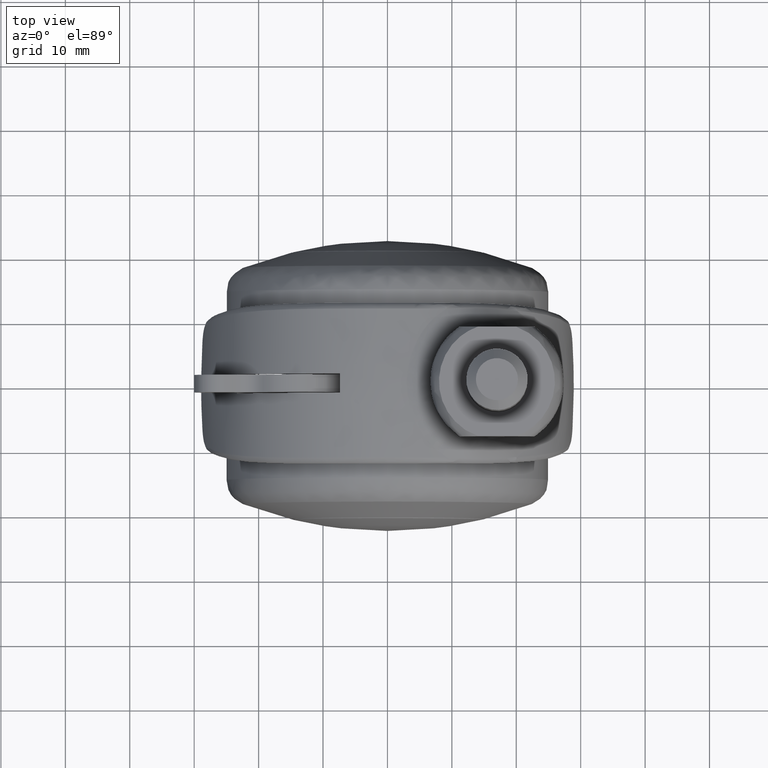
[diagram: clean part render]
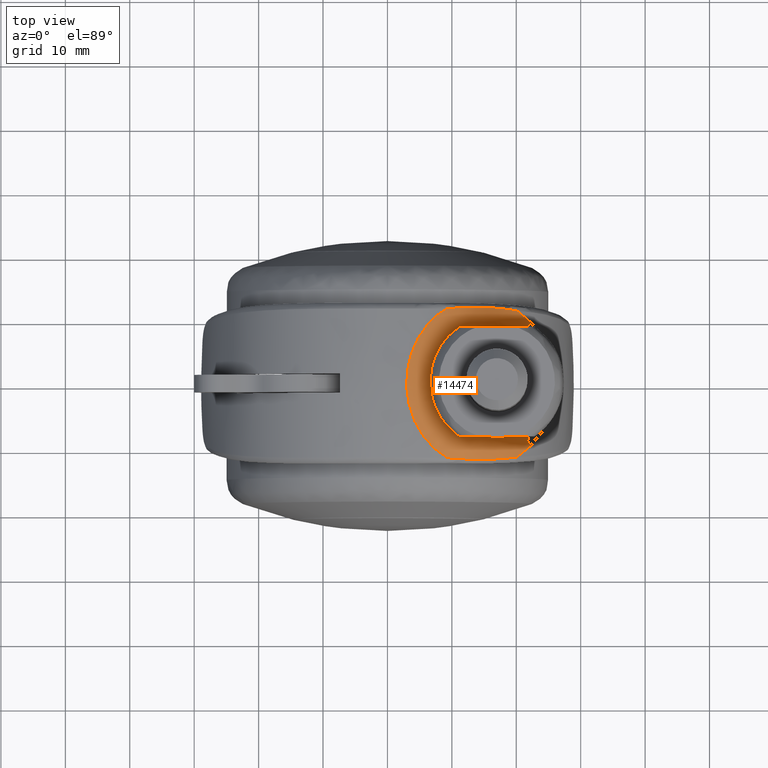
[diagram: same view with one face highlighted and labeled with its STEP entity id]
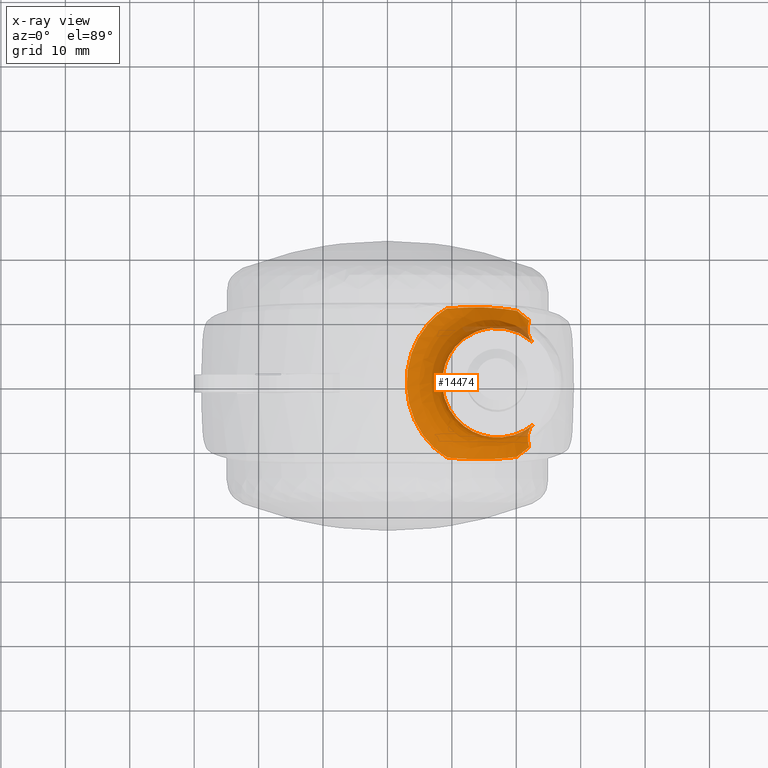
[diagram: x-ray of the same camera — body ghosted, the highlighted face saturated]
A machine part, top view. The second image highlights one B-rep face of the part: STEP entity #14474.
The next image is the same camera in x-ray: the body ghosted, the highlighted face saturated — about 4% of this face is hidden behind the body in this view.
In plain terms, the highlighted face is a freeform B-spline surface patch.
Its self-contained STEP definition (entity closure, byte-faithful):
#6626=CARTESIAN_POINT('',(13.600820461277509,7.790736805630536,31.354290304166959));
#6627=VERTEX_POINT('',#6626);
#6633=CARTESIAN_POINT('',(8.989002740489665,2.841469240806965,33.653904799584353));
#6634=VERTEX_POINT('',#6633);
#6635=CARTESIAN_POINT('',(13.600820461277509,7.790736805630536,31.354290304166959));
#6636=CARTESIAN_POINT('',(13.565729914200160,7.775426381080232,31.377298043124259));
#6637=CARTESIAN_POINT('',(13.530628359254029,7.759828884174974,31.400176220354560));
#6638=CARTESIAN_POINT('',(13.396243224167790,7.699013545796422,31.487243691684601));
#6639=CARTESIAN_POINT('',(13.296838438648569,7.651714902862318,31.550553284718038));
#6640=CARTESIAN_POINT('',(13.001106572989871,7.503828406382385,31.735749136437661));
#6641=CARTESIAN_POINT('',(12.806401450721170,7.396885921984854,31.853467234776570));
#6642=CARTESIAN_POINT('',(12.230665830781721,7.050121551108235,32.190150832822702));
#6643=CARTESIAN_POINT('',(11.857925928654760,6.784512908495725,32.392668728303427));
#6644=CARTESIAN_POINT('',(11.410362248230930,6.404664766868617,32.620605398371197));
#6645=CARTESIAN_POINT('',(11.321774566119750,6.326291461823119,32.664930350296324));
#6646=CARTESIAN_POINT('',(11.146594117490221,6.164563779405603,32.751102876356661));
#6647=CARTESIAN_POINT('',(11.060181937359159,6.081355851610582,32.792857851909723));
#6648=CARTESIAN_POINT('',(10.806812602274761,5.826813210939921,32.913262072709550));
#6649=CARTESIAN_POINT('',(10.644854185199760,5.649783313293100,32.987483807570896));
#6650=CARTESIAN_POINT('',(10.180549544677669,5.096747138627567,33.193804868195173));
#6651=CARTESIAN_POINT('',(9.899623006714329,4.698943592853090,33.309661365720650));
#6652=CARTESIAN_POINT('',(9.588487835301905,4.163509506254202,33.431787150705333));
#6653=CARTESIAN_POINT('',(9.528144437698854,4.054251405002075,33.455118677172237));
#6654=CARTESIAN_POINT('',(9.412261383597123,3.832988550005596,33.499338269939400));
#6655=CARTESIAN_POINT('',(9.356889691308643,3.721334249022219,33.520164350712903));
#6656=CARTESIAN_POINT('',(9.198411029393519,3.383359077004461,33.579054080689687));
#6657=CARTESIAN_POINT('',(9.102927392000984,3.154031835741919,33.613541489053283));
#6658=CARTESIAN_POINT('',(9.007923474470237,2.894387315039669,33.647220431935189));
#6659=CARTESIAN_POINT('',(8.998398451854719,2.867953324330772,33.650589201872890));
#6660=CARTESIAN_POINT('',(8.989002740489665,2.841469240806965,33.653904799584353));
#6661=B_SPLINE_CURVE_WITH_KNOTS('',3,(#6635,#6636,#6637,#6638,#6639,#6640,#6641,#6642,#6643,#6644,#6645,#6646,#6647,#6648,#6649,#6650,#6651,#6652,#6653,#6654,#6655,#6656,#6657,#6658,#6659,#6660),.UNSPECIFIED.,.F.,.U.,(4,2,2,2,2,2,2,2,2,2,2,2,4),(0.286299367508931,0.289062499999999,0.296874999999999,0.312499999999999,0.343749999999999,0.351562500000000,0.359375000000000,0.375000000000000,0.406250000000000,0.414062500000000,0.421875000000000,0.437500000000000,0.439267337095085),.UNSPECIFIED.);
#6662=EDGE_CURVE('',#6627,#6634,#6661,.T.);
#6714=CARTESIAN_POINT('',(22.568417742021449,-6.422049816868380,21.494184999999899));
#6715=VERTEX_POINT('',#6714);
#6716=CARTESIAN_POINT('',(8.989002740489665,2.841469240806965,33.653904799584353));
#6717=CARTESIAN_POINT('',(8.832263581365002,2.399662554207517,33.709215300537593));
#6718=CARTESIAN_POINT('',(8.711510209278796,1.943915635522798,33.749728612481647));
#6719=CARTESIAN_POINT('',(8.606806491534297,1.349178001491099,33.784444927809687));
#6720=CARTESIAN_POINT('',(8.587592946124408,1.223649841172027,33.790773713959133));
#6721=CARTESIAN_POINT('',(8.554965940671574,0.973299214296194,33.801482012839109));
#6722=CARTESIAN_POINT('',(8.541488340737612,0.848135817591433,33.805882798527172));
#6723=CARTESIAN_POINT('',(8.509437095726142,0.472680773971368,33.816326310565962));
#6724=CARTESIAN_POINT('',(8.489020485552860,-0.027832382726167,33.822920631034371));
#6725=CARTESIAN_POINT('',(8.512708774295810,-0.528160929720569,33.815266146705163));
#6726=CARTESIAN_POINT('',(8.547205600986876,-0.903337180250094,33.804015885876602));
#6727=CARTESIAN_POINT('',(8.561497024000904,-1.028384217688447,33.799344246106507));
#6728=CARTESIAN_POINT('',(8.595747432896971,-1.278454467870869,33.788088425314783));
#6729=CARTESIAN_POINT('',(8.615770767065211,-1.403810722005213,33.781482871433127));
#6730=CARTESIAN_POINT('',(8.729497740880367,-2.026040533671226,33.743709569604377));
#6731=CARTESIAN_POINT('',(8.863039508168424,-2.507294609749202,33.698768277107654));
#6732=CARTESIAN_POINT('',(9.123574162634139,-3.205240662314620,33.606112687702741));
#6733=CARTESIAN_POINT('',(9.220515685262370,-3.433873954153890,33.570974904385011));
#6734=CARTESIAN_POINT('',(9.381115982977482,-3.770684615597874,33.511070384299828));
#6735=CARTESIAN_POINT('',(9.437183993298207,-3.881930125782598,33.489899521471123));
#6736=CARTESIAN_POINT('',(9.554435868276093,-4.102333825797065,33.444976502749803));
#6737=CARTESIAN_POINT('',(9.615444449937382,-4.211132996882343,33.421289333300983));
#6738=CARTESIAN_POINT('',(9.929758168969290,-4.744123405768174,33.297389164566930));
#6739=CARTESIAN_POINT('',(10.212800938094819,-5.139517608404394,33.180100930206372));
#6740=CARTESIAN_POINT('',(10.679474087164561,-5.688464138380205,32.971734986762193));
#6741=CARTESIAN_POINT('',(10.842087476641010,-5.864051059453741,32.896849623602428));
#6742=CARTESIAN_POINT('',(11.096213026048661,-6.116333833050534,32.775502013350803));
#6743=CARTESIAN_POINT('',(11.182624127177400,-6.198576620991978,32.733547928824358));
#6744=CARTESIAN_POINT('',(11.358807439343220,-6.359336539267152,32.646463648714757));
#6745=CARTESIAN_POINT('',(11.447875925375749,-6.437209828369117,32.601680133501922));
#6746=CARTESIAN_POINT('',(11.897226432831010,-6.814090422257684,32.371712789393150));
#6747=CARTESIAN_POINT('',(12.269946974657170,-7.076334922237363,32.168141558100899));
#6748=CARTESIAN_POINT('',(13.034507403696660,-7.531453231626383,31.719020207383799));
#6749=CARTESIAN_POINT('',(13.426388101518970,-7.724261352385262,31.473469378402282));
#6750=CARTESIAN_POINT('',(14.224187541296400,-8.045482086840806,30.937020330057649));
#6751=CARTESIAN_POINT('',(14.619263809516900,-8.169638149919519,30.653406560729149));
#6752=CARTESIAN_POINT('',(15.399176727764671,-8.357527032895343,30.056682838524988));
#6753=CARTESIAN_POINT('',(15.784119680065309,-8.421217189391333,29.743510976345849));
#6754=CARTESIAN_POINT('',(16.258221953667281,-8.468107615326497,29.333918600888250));
#6755=CARTESIAN_POINT('',(16.352689847187168,-8.475841309494983,29.251093052402329));
#6756=CARTESIAN_POINT('',(16.540904739795849,-8.488116870172883,29.083634662661460));
#6757=CARTESIAN_POINT('',(16.634765244992611,-8.492659441472046,28.998895530096458));
#6758=CARTESIAN_POINT('',(16.913770119469529,-8.501599845004414,28.743339614232902));
#6759=CARTESIAN_POINT('',(17.096702512640359,-8.501358202286493,28.570874194784139));
#6760=CARTESIAN_POINT('',(17.636747641276031,-8.483767716891583,28.047403983935119));
#6761=CARTESIAN_POINT('',(17.985125721298608,-8.449639128129036,27.690330620908441));
#6762=CARTESIAN_POINT('',(18.660523144064719,-8.343233003492486,26.960975636176169));
#6763=CARTESIAN_POINT('',(18.987536772059251,-8.270924910105038,26.588692549633830));
#6764=CARTESIAN_POINT('',(19.383852849745210,-8.159290998413912,26.114346438675600));
#6765=CARTESIAN_POINT('',(19.462492519001721,-8.135896915173422,26.019027286818179));
#6766=CARTESIAN_POINT('',(19.618543638010891,-8.087021526311920,25.827500812723610));
#6767=CARTESIAN_POINT('',(19.696003764190689,-8.061521736821103,25.731230603417121));
#6768=CARTESIAN_POINT('',(19.925805291679559,-7.982225951437351,25.442074352256849));
#6769=CARTESIAN_POINT('',(20.075790153200529,-7.925574863458488,25.248578167814351));
#6770=CARTESIAN_POINT('',(20.516638381895060,-7.744942516321844,24.666018776892990));
#6771=CARTESIAN_POINT('',(20.798416945645020,-7.610332630282786,24.274879927169358));
#6772=CARTESIAN_POINT('',(21.340004932332960,-7.315018162421025,23.487734041300062));
#6773=CARTESIAN_POINT('',(21.599808218665409,-7.154310346135242,23.091724082426580));
#6774=CARTESIAN_POINT('',(22.099079877653619,-6.807479415615021,22.295684466595009));
#6775=CARTESIAN_POINT('',(22.338545450094038,-6.621367035275044,21.895648769417360));
#6776=CARTESIAN_POINT('',(22.568417742021449,-6.422049816868380,21.494184999999899));
#6777=B_SPLINE_CURVE_WITH_KNOTS('',3,(#6716,#6717,#6718,#6719,#6720,#6721,#6722,#6723,#6724,#6725,#6726,#6727,#6728,#6729,#6730,#6731,#6732,#6733,#6734,#6735,#6736,#6737,#6738,#6739,#6740,#6741,#6742,#6743,#6744,#6745,#6746,#6747,#6748,#6749,#6750,#6751,#6752,#6753,#6754,#6755,#6756,#6757,#6758,#6759,#6760,#6761,#6762,#6763,#6764,#6765,#6766,#6767,#6768,#6769,#6770,#6771,#6772,#6773,#6774,#6775,#6776),.UNSPECIFIED.,.F.,.U.,(4,2,2,2,1,2,2,2,2,2,2,2,2,2,2,2,2,2,2,2,2,2,2,2,2,2,2,2,2,2,4),(0.439267337095085,0.468750000000000,0.476562500000000,0.484375000000000,0.500000000000000,0.515625000000000,0.523437500000000,0.531250000000000,0.562500000000000,0.578125000000000,0.585937500000000,0.593750000000000,0.625000000000000,0.640625000000000,0.648437500000000,0.656250000000000,0.687500000000001,0.718750000000001,0.750000000000001,0.781250000000001,0.789062500000001,0.796875000000001,0.812500000000001,0.843750000000001,0.875000000000001,0.882812500000001,0.890625000000001,0.906250000000001,0.937500000000000,0.968750000000000,1.0),.UNSPECIFIED.);
#6778=EDGE_CURVE('',#6634,#6715,#6777,.T.);
#6780=CARTESIAN_POINT('',(22.568417742021399,6.422049816868411,21.494184999999899));
#6781=VERTEX_POINT('',#6780);
#6797=CARTESIAN_POINT('',(22.568417742021399,6.422049816868411,21.494184999999899));
#6798=CARTESIAN_POINT('',(22.338092286259378,6.621759853532426,21.896439941882960));
#6799=CARTESIAN_POINT('',(22.097679625041689,6.808609665879277,22.298061507609049));
#6800=CARTESIAN_POINT('',(21.720862944921429,7.070136187964205,22.898639540938539));
#6801=CARTESIAN_POINT('',(21.592553597428299,7.154172246539103,23.098527054376941));
#6802=CARTESIAN_POINT('',(21.330294832161471,7.315891935200796,23.497579058935319));
#6803=CARTESIAN_POINT('',(21.196208444462950,7.393647488043520,23.696940268544530));
#6804=CARTESIAN_POINT('',(20.786233831151641,7.616508560598880,24.292135250141001));
#6805=CARTESIAN_POINT('',(20.502790089402399,7.751225953063007,24.684913257859019));
#6806=CARTESIAN_POINT('',(19.914054116290959,7.991203255311110,25.461675806644561));
#6807=CARTESIAN_POINT('',(19.608767996968790,8.096473407477797,25.845662240350290));
#6808=CARTESIAN_POINT('',(19.132835930661020,8.229710880886053,26.414508169390260));
#6809=CARTESIAN_POINT('',(18.971186438178840,8.269997976099138,26.602934608072442));
#6810=CARTESIAN_POINT('',(18.641533280561799,8.341691118456399,26.977319068455600));
#6811=CARTESIAN_POINT('',(18.473214254112548,8.373136998806189,27.163607944155601));
#6812=CARTESIAN_POINT('',(17.961502387866041,8.452495412335459,27.715044392543589));
#6813=CARTESIAN_POINT('',(17.610917187472388,8.485686275878910,28.073350683275741));
#6814=CARTESIAN_POINT('',(16.889836738543391,8.506935755428996,28.770405071996919));
#6815=CARTESIAN_POINT('',(16.519344164400039,8.495040449586709,29.109154829202829));
#6816=CARTESIAN_POINT('',(15.947681492585151,8.436782858103770,29.601741518994000));
#6817=CARTESIAN_POINT('',(15.754109114844169,8.410499318125728,29.763612052684209));
#6818=CARTESIAN_POINT('',(15.366092386121730,8.343805468241897,30.078337825164478));
#6819=CARTESIAN_POINT('',(15.171166743143930,8.303370897215896,30.231625084609028));
#6820=CARTESIAN_POINT('',(14.584034501671921,8.159382983842772,30.679231189794081));
#6821=CARTESIAN_POINT('',(14.189434188911600,8.033298750655096,30.961303405169570));
#6822=CARTESIAN_POINT('',(13.729033204904750,7.845734921540690,31.269768743891920));
#6823=CARTESIAN_POINT('',(13.664945213113400,7.818715190617047,31.312245854370179));
#6824=CARTESIAN_POINT('',(13.600820461277509,7.790736805630536,31.354290304166959));
#6825=B_SPLINE_CURVE_WITH_KNOTS('',3,(#6797,#6798,#6799,#6800,#6801,#6802,#6803,#6804,#6805,#6806,#6807,#6808,#6809,#6810,#6811,#6812,#6813,#6814,#6815,#6816,#6817,#6818,#6819,#6820,#6821,#6822,#6823,#6824),.UNSPECIFIED.,.F.,.U.,(4,2,2,2,2,2,2,2,2,2,2,2,2,4),(0.0,0.031250000000000,0.046875000000000,0.062500000000000,0.093750000000000,0.125000000000000,0.140625000000000,0.156250000000000,0.187500000000000,0.218749999999999,0.234374999999999,0.249999999999999,0.281249999999999,0.286299367508931),.UNSPECIFIED.);
#6826=EDGE_CURVE('',#6781,#6627,#6825,.T.);
#9891=CARTESIAN_POINT('',(9.187980648555419,11.545094187609340,26.963906616021148));
#9892=VERTEX_POINT('',#9891);
#9906=CARTESIAN_POINT('',(20.124422700888552,11.318372585422759,20.189590055835801));
#9907=VERTEX_POINT('',#9906);
#9908=CARTESIAN_POINT('',(20.124422700888552,11.318372585422759,20.189590055835801));
#9909=CARTESIAN_POINT('',(19.352016494529870,11.435296953342750,20.945074915839012));
#9910=CARTESIAN_POINT('',(18.566417005668910,11.534508870990869,21.684705131571221));
#9911=CARTESIAN_POINT('',(17.333168127143360,11.647792046319029,22.724876947214799));
#9912=CARTESIAN_POINT('',(16.912988765273820,11.679647264295470,23.060113511641070));
#9913=CARTESIAN_POINT('',(16.049434013201392,11.730091252941760,23.701135440974639));
#9914=CARTESIAN_POINT('',(15.606025401749060,11.748674934908051,24.006877399429509));
#9915=CARTESIAN_POINT('',(14.692230700093340,11.771117413438860,24.584046842987622));
#9916=CARTESIAN_POINT('',(14.221787549219099,11.774953672940031,24.855400989820438));
#9917=CARTESIAN_POINT('',(13.494999335476070,11.768845177329149,25.235593204035730));
#9918=CARTESIAN_POINT('',(13.248954094668870,11.764823117005919,25.357999772700271));
#9919=CARTESIAN_POINT('',(12.754022092832560,11.752937209801271,25.592537340395019));
#9920=CARTESIAN_POINT('',(12.504700452481170,11.745073957002990,25.704910679053960));
#9921=CARTESIAN_POINT('',(11.751872300271170,11.716056996303591,26.029148902362738));
#9922=CARTESIAN_POINT('',(11.243419234564749,11.689420133847291,26.227916158596670));
#9923=CARTESIAN_POINT('',(10.219146056664339,11.624688321650520,26.605511051365148));
#9924=CARTESIAN_POINT('',(9.703342255071261,11.586629155925960,26.784384203999871));
#9925=CARTESIAN_POINT('',(9.187980648555419,11.545094187609340,26.963906616021148));
#9926=B_SPLINE_CURVE_WITH_KNOTS('',3,(#9908,#9909,#9910,#9911,#9912,#9913,#9914,#9915,#9916,#9917,#9918,#9919,#9920,#9921,#9922,#9923,#9924,#9925),.UNSPECIFIED.,.F.,.U.,(4,2,2,2,2,2,2,2,4),(0.0,0.250000000000000,0.375000000000000,0.500000000000000,0.625000000000000,0.687500000000000,0.750000000000000,0.875000000000000,1.0),.UNSPECIFIED.);
#9927=EDGE_CURVE('',#9907,#9892,#9926,.T.);
#12280=CARTESIAN_POINT('',(20.055875386858499,-11.361640433534079,20.252353113923149));
#12281=VERTEX_POINT('',#12280);
#12859=CARTESIAN_POINT('',(9.278600396457280,-11.597686659519740,26.927886596854648));
#12860=VERTEX_POINT('',#12859);
#13083=CARTESIAN_POINT('',(9.278600396457280,-11.597686659519740,26.927886596854648));
#13084=CARTESIAN_POINT('',(9.783065509583327,-11.637416294707160,26.750298036410381));
#13085=CARTESIAN_POINT('',(10.287632605575720,-11.673667815737220,26.572854096909190));
#13086=CARTESIAN_POINT('',(11.287085685371199,-11.734999504227110,26.199707860306070));
#13087=CARTESIAN_POINT('',(11.781949400991120,-11.760049309430871,26.003963503995070));
#13088=CARTESIAN_POINT('',(12.755374913708360,-11.796233530875650,25.581794712772830));
#13089=CARTESIAN_POINT('',(13.233947245049210,-11.807378869122880,25.355390128832902));
#13090=CARTESIAN_POINT('',(14.171692914583240,-11.814888696381740,24.866095810034089));
#13091=CARTESIAN_POINT('',(14.630891497172231,-11.811278271608289,24.603253631866341));
#13092=CARTESIAN_POINT('',(15.529708419957730,-11.789632735132310,24.040749794376360));
#13093=CARTESIAN_POINT('',(15.969353035079241,-11.771614032700249,23.741137504376042));
#13094=CARTESIAN_POINT('',(16.615571844056380,-11.734432862430140,23.266801560672590));
#13095=CARTESIAN_POINT('',(16.828783900290048,-11.720349603802219,23.104562522005178));
#13096=CARTESIAN_POINT('',(17.251190762337551,-11.688934709855920,22.772526410697100));
#13097=CARTESIAN_POINT('',(17.460494701290170,-11.671593120839210,22.602639358435081));
#13098=CARTESIAN_POINT('',(18.496919779172881,-11.577226368014470,21.737342043670250));
#13099=CARTESIAN_POINT('',(19.284151304891701,-11.478146590605601,21.002204999003400));
#13100=CARTESIAN_POINT('',(20.055875386858499,-11.361640433534079,20.252353113923149));
#13101=B_SPLINE_CURVE_WITH_KNOTS('',3,(#13083,#13084,#13085,#13086,#13087,#13088,#13089,#13090,#13091,#13092,#13093,#13094,#13095,#13096,#13097,#13098,#13099,#13100),.UNSPECIFIED.,.F.,.U.,(4,2,2,2,2,2,2,2,4),(0.0,0.125000000000000,0.250000000000000,0.375000000000000,0.500000000000000,0.625000000000000,0.687500000000000,0.749999999999999,1.0),.UNSPECIFIED.);
#13102=EDGE_CURVE('',#12860,#12281,#13101,.T.);
#13791=CARTESIAN_POINT('',(22.010735593369049,9.821958543445859,18.306129050764600));
#13792=VERTEX_POINT('',#13791);
#13793=CARTESIAN_POINT('',(22.568417742021381,6.422049816868399,21.494184999999909));
#13794=CARTESIAN_POINT('',(21.285066533764226,7.534815342064595,19.449665845862494));
#13795=CARTESIAN_POINT('',(22.010735593369049,9.821958543445854,18.306129050764600));
#13803=(BOUNDED_CURVE()B_SPLINE_CURVE(2,(#13793,#13794,#13795),.UNSPECIFIED.,.F.,.U.)CURVE()GEOMETRIC_REPRESENTATION_ITEM()QUASI_UNIFORM_CURVE()RATIONAL_B_SPLINE_CURVE((1.0,0.882983071958700,1.0))REPRESENTATION_ITEM(''));
#13804=EDGE_CURVE('',#6781,#13792,#13803,.T.);
#13880=CARTESIAN_POINT('',(22.010735593369098,-9.821958543445799,18.306129050764550));
#13881=VERTEX_POINT('',#13880);
#13882=CARTESIAN_POINT('',(22.010735593369091,-9.821958543445801,18.306129050764550));
#13883=CARTESIAN_POINT('',(21.285066533764265,-7.534815342064546,19.449665845862480));
#13884=CARTESIAN_POINT('',(22.568417742021431,-6.422049816868363,21.494184999999909));
#13892=(BOUNDED_CURVE()B_SPLINE_CURVE(2,(#13882,#13883,#13884),.UNSPECIFIED.,.F.,.U.)CURVE()GEOMETRIC_REPRESENTATION_ITEM()QUASI_UNIFORM_CURVE()RATIONAL_B_SPLINE_CURVE((1.0,0.882983071958700,1.0))REPRESENTATION_ITEM(''));
#13893=EDGE_CURVE('',#13881,#6715,#13892,.T.);
#13988=CARTESIAN_POINT('',(22.188111475523730,-9.675203052987664,18.110127009512748));
#13989=CARTESIAN_POINT('',(22.131119973642150,-9.730852597797467,18.172097823816301));
#13990=CARTESIAN_POINT('',(22.074129882124570,-9.786500765452585,18.234067104533231));
#13991=CARTESIAN_POINT('',(21.304901643625481,-10.537616281170591,19.070502340511670));
#13992=CARTESIAN_POINT('',(20.529771727630848,-11.127138642062826,19.834407518072780));
#13993=CARTESIAN_POINT('',(19.264982225052226,-11.854373328791501,20.953995701492762));
#13994=CARTESIAN_POINT('',(18.826224214863156,-12.070187153516507,21.322945757203303));
#13995=CARTESIAN_POINT('',(18.139912787905406,-12.350437698002482,21.869456103468266));
#13996=CARTESIAN_POINT('',(17.906018346190852,-12.436665522240901,22.050765411856904));
#13997=CARTESIAN_POINT('',(17.433738561360318,-12.591985830066131,22.406994313647914));
#13998=CARTESIAN_POINT('',(17.194786595073026,-12.661342313506111,22.582382524205720));
#13999=CARTESIAN_POINT('',(15.985865721704595,-12.965519426153792,23.445749361517574));
#14000=CARTESIAN_POINT('',(14.973615068278075,-13.075438605123820,24.093213952670446));
#14001=CARTESIAN_POINT('',(12.850603150389567,-12.962412633028777,25.302150603488894));
#14002=CARTESIAN_POINT('',(11.785971246994380,-12.741645346977709,25.837221572433236));
#14003=CARTESIAN_POINT('',(10.461984386536585,-12.227611439885516,26.429879449295203));
#14004=CARTESIAN_POINT('',(10.196383280978923,-12.112112243725527,26.545066179364319));
#14005=CARTESIAN_POINT('',(9.672973835872096,-11.858572633255458,26.765200201405921));
#14006=CARTESIAN_POINT('',(9.415411136414230,-11.720795241085069,26.870086613938973));
#14007=CARTESIAN_POINT('',(8.655591528322058,-11.274411514836448,27.170342352601001));
#14008=CARTESIAN_POINT('',(8.166110471689258,-10.932907775765649,27.351355096121782));
#14009=CARTESIAN_POINT('',(7.460407880879484,-10.352027117086152,27.597819585280924));
#14010=CARTESIAN_POINT('',(7.229944557244562,-10.146926930120003,27.675787690464535));
#14011=CARTESIAN_POINT('',(6.779293361623708,-9.712798932945679,27.823842813287886));
#14012=CARTESIAN_POINT('',(6.558616584817802,-9.483050162580511,27.894061753426797));
#14013=CARTESIAN_POINT('',(5.925420339161884,-8.770332238965686,28.089926463188956));
#14014=CARTESIAN_POINT('',(5.537379543538067,-8.260352664620751,28.202302405825154));
#14015=CARTESIAN_POINT('',(5.007481610388394,-7.443630784061686,28.348741414960834));
#14016=CARTESIAN_POINT('',(4.839575116678576,-7.162729772285303,28.393844189200401));
#14017=CARTESIAN_POINT('',(4.521814287661578,-6.583248762263766,28.477243239885929));
#14018=CARTESIAN_POINT('',(4.371348091246755,-6.283276832837549,28.515690500136113));
#14019=CARTESIAN_POINT('',(3.953303207369785,-5.366813878414416,28.620304965780832));
#14020=CARTESIAN_POINT('',(3.719701651633607,-4.736955037832448,28.675707778662364));
#14021=CARTESIAN_POINT('',(3.341012284510101,-3.440681674704323,28.763357615086910));
#14022=CARTESIAN_POINT('',(3.195668251423373,-2.772585194932642,28.795643330240040));
#14023=CARTESIAN_POINT('',(2.999291329296820,-1.405190193178855,28.838853119809190));
#14024=CARTESIAN_POINT('',(2.950222549516404,-0.721278574851260,28.849365902515899));
#14025=CARTESIAN_POINT('',(2.946772150435978,0.646967616611634,28.850111647789952));
#14026=CARTESIAN_POINT('',(2.992389860306173,1.331300702919152,28.840344680265932));
#14027=CARTESIAN_POINT('',(3.181969605191005,2.700416133455362,28.798681737056551));
#14028=CARTESIAN_POINT('',(3.323867797808945,3.368939251313762,28.767219530809221));
#14029=CARTESIAN_POINT('',(3.696019003092570,4.667597380847986,28.681284488695042));
#14030=CARTESIAN_POINT('',(3.926467228462534,5.299024128185473,28.626786281504600));
#14031=CARTESIAN_POINT('',(4.340024549702799,6.218400680995483,28.523628242716001));
#14032=CARTESIAN_POINT('',(4.488998022225260,6.519355751334794,28.485692701430509));
#14033=CARTESIAN_POINT('',(4.804011494250156,7.101133173050296,28.403309600772229));
#14034=CARTESIAN_POINT('',(4.970641067510059,7.383312968399634,28.358716961747668));
#14035=CARTESIAN_POINT('',(5.497038278900239,8.204214677379953,28.213801512577096));
#14036=CARTESIAN_POINT('',(5.883182509453308,8.717438602572386,28.102434936535960));
#14037=CARTESIAN_POINT('',(6.514382283178888,9.435542194638314,27.907981863527652));
#14038=CARTESIAN_POINT('',(6.734021044602327,9.666620551009061,27.838377578687034));
#14039=CARTESIAN_POINT('',(7.182570297402914,10.103376267851614,27.691627202238639));
#14040=CARTESIAN_POINT('',(7.412352103496558,10.310131010231816,27.614222883397357));
#14041=CARTESIAN_POINT('',(8.117211135789265,10.896684250916735,27.369086884878886));
#14042=CARTESIAN_POINT('',(8.607728342747121,11.242912701612937,27.188484125285317));
#14043=CARTESIAN_POINT('',(9.371887820836756,11.696701962992728,26.887622631501024));
#14044=CARTESIAN_POINT('',(9.632396313837781,11.837450358165787,26.781880125853828));
#14045=CARTESIAN_POINT('',(10.155089342313243,12.093363159718768,26.562763425432614));
#14046=CARTESIAN_POINT('',(10.417742635267411,12.208919814809448,26.449232105014119));
#14047=CARTESIAN_POINT('',(11.208960082964799,12.520298592228286,26.096303316376741));
#14048=CARTESIAN_POINT('',(11.740738714684685,12.680963858024150,25.844596292025582));
#14049=CARTESIAN_POINT('',(12.810183829041085,12.914616022803356,25.305648848183015));
#14050=CARTESIAN_POINT('',(13.349338225014222,12.987054485749624,25.017320524311380));
#14051=CARTESIAN_POINT('',(14.403001774111527,13.046889792916637,24.418913301756415));
#14052=CARTESIAN_POINT('',(14.921162604179472,13.035334206078225,24.107113518429582));
#14053=CARTESIAN_POINT('',(15.685399417497853,12.961508633205911,23.620092687314010));
#14054=CARTESIAN_POINT('',(15.937978525372120,12.927444651722787,23.454528169528377));
#14055=CARTESIAN_POINT('',(16.438776767166583,12.840983057723797,23.116857888697467));
#14056=CARTESIAN_POINT('',(16.687300912712686,12.788456813688381,22.944507943159604));
#14057=CARTESIAN_POINT('',(17.905899202637741,12.484591281633367,22.075675688587307));
#14058=CARTESIAN_POINT('',(18.815061730661757,12.110641489202981,21.350992020272802));
#14059=CARTESIAN_POINT('',(20.092049109195248,11.379993899773345,20.222492015731238));
#14060=CARTESIAN_POINT('',(20.503249850379277,11.107279471340675,19.839133723362526));
#14061=CARTESIAN_POINT('',(21.286699351247616,10.512871740355816,19.070475052859514));
#14062=CARTESIAN_POINT('',(21.660495207379959,10.190405789281003,18.683841837604945));
#14063=CARTESIAN_POINT('',(22.074209685286416,9.786421233819686,18.233980160758996));
#14064=CARTESIAN_POINT('',(22.131279584054614,9.730693530499355,18.171923931817688));
#14065=CARTESIAN_POINT('',(22.188350897275722,9.674964445991849,18.109866164839424));
#14066=CARTESIAN_POINT('',(22.184885738705297,-9.665352531682331,18.115232933811654));
#14067=CARTESIAN_POINT('',(22.127903210857948,-9.720922028283829,18.177182388650131));
#14068=CARTESIAN_POINT('',(22.070921388489840,-9.776490836900299,18.239131076515715));
#14069=CARTESIAN_POINT('',(21.301735812758235,-10.526602438671381,19.075363319736745));
#14070=CARTESIAN_POINT('',(20.526727424306308,-11.115216652397928,19.838998649209920));
#14071=CARTESIAN_POINT('',(19.262370959916517,-11.841133206138251,20.958031184125083));
#14072=CARTESIAN_POINT('',(18.823795313587329,-12.056525331075081,21.326774797697038));
#14073=CARTESIAN_POINT('',(18.137838344930682,-12.336164297152958,21.872938876746364));
#14074=CARTESIAN_POINT('',(17.904074584404299,-12.422193841225692,22.054127451717321));
#14075=CARTESIAN_POINT('',(17.432082108808174,-12.577132799729121,22.410106752369629));
#14076=CARTESIAN_POINT('',(17.193286699226697,-12.646305595596951,22.585365948483620));
#14077=CARTESIAN_POINT('',(15.985205721315904,-12.949626677909446,23.448078680844286));
#14078=CARTESIAN_POINT('',(14.973852294829115,-13.058959420354789,24.094952384718386));
#14079=CARTESIAN_POINT('',(12.853203315264638,-12.945248937985934,25.302689043155400));
#14080=CARTESIAN_POINT('',(11.789978205891483,-12.724380315246414,25.837177607959262));
#14081=CARTESIAN_POINT('',(10.467964553874515,-12.210686479123263,26.429219916883067));
#14082=CARTESIAN_POINT('',(10.202764807246142,-12.095278159133244,26.544289964003681));
#14083=CARTESIAN_POINT('',(9.680162554850044,-11.841966300853565,26.764206579871139));
#14084=CARTESIAN_POINT('',(9.423005565237171,-11.704325121484876,26.868992107069296));
#14085=CARTESIAN_POINT('',(8.664397599956908,-11.258416563086607,27.168970553680879));
#14086=CARTESIAN_POINT('',(8.175726538841953,-10.917319432351924,27.349829884230960));
#14087=CARTESIAN_POINT('',(7.471208513163684,-10.337183029005971,27.596112090745546));
#14088=CARTESIAN_POINT('',(7.241134616355036,-10.132352726604134,27.674027317545537));
#14089=CARTESIAN_POINT('',(6.791247753846325,-9.698808665700669,27.821991582187412));
#14090=CARTESIAN_POINT('',(6.570947116392920,-9.469375109101327,27.892172445469686));
#14091=CARTESIAN_POINT('',(5.938830110827928,-8.757648177750355,28.087944910327231));
#14092=CARTESIAN_POINT('',(5.551453755738257,-8.248396855142083,28.200287261069171));
#14093=CARTESIAN_POINT('',(5.022456678869853,-7.432851944294028,28.346703351213879));
#14094=CARTESIAN_POINT('',(4.854834795715456,-7.152357636060919,28.391803045738349));
#14095=CARTESIAN_POINT('',(4.537610374101426,-6.573717327472028,28.475202701095718));
#14096=CARTESIAN_POINT('',(4.387397094684248,-6.274181574904426,28.513653676475670));
#14097=CARTESIAN_POINT('',(3.970051809502969,-5.359051803422655,28.618285789958982));
#14098=CARTESIAN_POINT('',(3.736836564454092,-4.730109616298790,28.673708630037350));
#14099=CARTESIAN_POINT('',(3.358768851066327,-3.435717068844184,28.761398178325063));
#14100=CARTESIAN_POINT('',(3.213660554526924,-2.768587288654993,28.793703659573456));
#14101=CARTESIAN_POINT('',(3.017601250512401,-1.403166450043731,28.836941538179321));
#14102=CARTESIAN_POINT('',(2.968611110080680,-0.720239633070095,28.847462280936320));
#14103=CARTESIAN_POINT('',(2.965166260146910,0.646035698283059,28.848208564644192));
#14104=CARTESIAN_POINT('',(3.010710878003642,1.329383469584969,28.838434175573411));
#14105=CARTESIAN_POINT('',(3.199984115653703,2.696522548304437,28.796743944582726));
#14106=CARTESIAN_POINT('',(3.341652296233882,3.364078563747065,28.765262247253371));
#14107=CARTESIAN_POINT('',(3.713192976042511,4.660852749825700,28.679287505151393));
#14108=CARTESIAN_POINT('',(3.943260404195415,5.291360708462852,28.624769016540291));
#14109=CARTESIAN_POINT('',(4.356126103264157,6.209399761830097,28.521592412193513));
#14110=CARTESIAN_POINT('',(4.504849335566485,6.509917160026807,28.483652761456565));
#14111=CARTESIAN_POINT('',(4.819331350203920,7.090850290990683,28.401268093731669));
#14112=CARTESIAN_POINT('',(4.985678628338309,7.372621341601111,28.356677965815333));
#14113=CARTESIAN_POINT('',(5.511181317226181,8.192339278474677,28.211783493728376));
#14114=CARTESIAN_POINT('',(5.896664511827908,8.704829462190018,28.100448886171264));
#14115=CARTESIAN_POINT('',(6.526788223005053,9.421932702354441,27.906085393983219));
#14116=CARTESIAN_POINT('',(6.746052483782785,9.652693308528969,27.836518173927900));
#14117=CARTESIAN_POINT('',(7.193840520178616,10.088859911804953,27.689856497345900));
#14118=CARTESIAN_POINT('',(7.423233729086158,10.295341646276283,27.612503988649532));
#14119=CARTESIAN_POINT('',(8.126908404157787,10.881140313148160,27.367547339607857));
#14120=CARTESIAN_POINT('',(8.616612524972945,11.226953948451742,27.187096425809063));
#14121=CARTESIAN_POINT('',(9.379551155369201,11.680256376729643,26.886511486834522));
#14122=CARTESIAN_POINT('',(9.639648547866084,11.820864404640776,26.780870340604956));
#14123=CARTESIAN_POINT('',(10.161533770386777,12.076544702128896,26.561969457187207));
#14124=CARTESIAN_POINT('',(10.423789201355500,12.192008995318531,26.448552898963097));
#14125=CARTESIAN_POINT('',(11.213833249566235,12.503176897410885,26.095987349405988));
#14126=CARTESIAN_POINT('',(11.744864653907813,12.663792468010676,25.844546246309235));
#14127=CARTESIAN_POINT('',(12.812906916207300,12.897497664361502,25.306161591676023));
#14128=CARTESIAN_POINT('',(13.351404659932527,12.970043816959953,25.018132135746281));
#14129=CARTESIAN_POINT('',(14.403890639458538,13.030213054544177,24.420319948353693));
#14130=CARTESIAN_POINT('',(14.921526895040031,13.018886638363067,24.108818546168642));
#14131=CARTESIAN_POINT('',(15.685069828960193,12.945468417051934,23.622232349257093));
#14132=CARTESIAN_POINT('',(15.937431643636771,12.911553216307780,23.456811656831434));
#14133=CARTESIAN_POINT('',(16.437824135268784,12.825409284774501,23.119423827895396));
#14134=CARTESIAN_POINT('',(16.686160017168408,12.773052424887480,22.947212588033199));
#14135=CARTESIAN_POINT('',(17.903880582559136,12.470089961970164,22.079059970956092));
#14136=CARTESIAN_POINT('',(18.812601810424873,12.096958426115478,21.354834852792372));
#14137=CARTESIAN_POINT('',(20.089155872823746,11.367603503364176,20.226888528581753));
#14138=CARTESIAN_POINT('',(20.500252243347465,11.095340784214514,19.843693192409610));
#14139=CARTESIAN_POINT('',(21.283556321956539,10.501849473352374,19.075312375002085));
#14140=CARTESIAN_POINT('',(21.657311843636997,10.179848857309741,18.688793746902782));
#14141=CARTESIAN_POINT('',(22.071003383481077,9.776410073691718,18.239041850638305));
#14142=CARTESIAN_POINT('',(22.128067202913044,9.720760499835528,18.177003934641046));
#14143=CARTESIAN_POINT('',(22.185131729896877,9.665110235963173,18.114965249416603));
#14144=CARTESIAN_POINT('',(21.453466185567983,-7.431796511184897,19.272975514591934));
#14145=CARTESIAN_POINT('',(21.397489895464048,-7.466040120965129,19.331707638654102));
#14146=CARTESIAN_POINT('',(21.341356897857601,-7.500379596880043,19.390604185268440));
#14147=CARTESIAN_POINT('',(20.567884483890126,-7.973552925632302,20.202156320850467));
#14148=CARTESIAN_POINT('',(19.807323673133901,-8.297913916087403,20.923935532986317));
#14149=CARTESIAN_POINT('',(18.626109652224930,-8.615042665521393,21.941317569601974));
#14150=CARTESIAN_POINT('',(18.225668162316918,-8.692244114956758,22.269692118139265));
#14151=CARTESIAN_POINT('',(17.618631439016575,-8.763712134203816,22.744633090451480));
#14152=CARTESIAN_POINT('',(17.414888709909452,-8.780110751729149,22.900250891619677));
#14153=CARTESIAN_POINT('',(17.010589574613775,-8.797705861636304,23.202082159487823));
#14154=CARTESIAN_POINT('',(16.809521081515879,-8.798988229617095,23.348709392430433));
#14155=CARTESIAN_POINT('',(15.811582727997953,-8.768801076070417,24.060841038011841));
#14156=CARTESIAN_POINT('',(15.037644003284290,-8.627603209455126,24.562427673145340));
#14157=CARTESIAN_POINT('',(13.581904080647764,-8.135093307291498,25.453587703796721));
#14158=CARTESIAN_POINT('',(12.933598239890621,-7.796793913033474,25.824629774417506));
#14159=CARTESIAN_POINT('',(12.206493466294928,-7.290333591988229,26.237483448257144));
#14160=CARTESIAN_POINT('',(12.064477627166770,-7.184191095513828,26.317840988101675));
#14161=CARTESIAN_POINT('',(11.790943286969426,-6.965947837398922,26.472455407367654));
#14162=CARTESIAN_POINT('',(11.659506107230071,-6.854002303092469,26.546668300452076));
#14163=CARTESIAN_POINT('',(11.278751318210027,-6.509822261968729,26.761709773140790));
#14164=CARTESIAN_POINT('',(11.042870800131087,-6.269470301102873,26.895069902777234));
#14165=CARTESIAN_POINT('',(10.707806764574954,-5.888892571568097,27.084431507416941));
#14166=CARTESIAN_POINT('',(10.599271143637637,-5.758634527308438,27.145739437871281));
#14167=CARTESIAN_POINT('',(10.387556184825286,-5.490036265735061,27.265075104093839));
#14168=CARTESIAN_POINT('',(10.284143870339346,-5.351291157925469,27.323229238861245));
#14169=CARTESIAN_POINT('',(9.986710330720634,-4.928831268700179,27.489792396369467));
#14170=CARTESIAN_POINT('',(9.803268725440219,-4.636550664873154,27.591512679747364));
#14171=CARTESIAN_POINT('',(9.548402531923696,-4.175140955690767,27.730735138771415));
#14172=CARTESIAN_POINT('',(9.466892172446663,-4.017502225897801,27.774891593123709));
#14173=CARTESIAN_POINT('',(9.311110982727541,-3.693364022700606,27.858561788536818));
#14174=CARTESIAN_POINT('',(9.236534432982992,-3.526088522478533,27.898236170845998));
#14175=CARTESIAN_POINT('',(9.027237155035545,-3.015318780980688,28.008602289494668));
#14176=CARTESIAN_POINT('',(8.907300079741882,-2.664502241616830,28.070465115726712));
#14177=CARTESIAN_POINT('',(8.710093800442378,-1.939525836205106,28.170879577936930));
#14178=CARTESIAN_POINT('',(8.632738889291723,-1.564463104611285,28.209496778141425));
#14179=CARTESIAN_POINT('',(8.527614054136299,-0.794160520717642,28.261688420933705));
#14180=CARTESIAN_POINT('',(8.500958124570598,-0.407665604169641,28.274742348582741));
#14181=CARTESIAN_POINT('',(8.499092536501783,0.365665111885113,28.275659961202606));
#14182=CARTESIAN_POINT('',(8.523883035616386,0.752448409961152,28.263523903033228));
#14183=CARTESIAN_POINT('',(8.625438448304102,1.523886274319763,28.213136380293314));
#14184=CARTESIAN_POINT('',(8.701037840868290,1.899303001372375,28.175431882325505));
#14185=CARTESIAN_POINT('',(8.895081612736336,2.625800816592185,28.076739314192352));
#14186=CARTESIAN_POINT('',(9.013580223537856,2.977564347273578,28.015701458855389));
#14187=CARTESIAN_POINT('',(9.220945701691216,3.489920067355238,27.906499701599468));
#14188=CARTESIAN_POINT('',(9.294896665771141,3.657705603641889,27.867211157177223));
#14189=CARTESIAN_POINT('',(9.449558820464500,3.982982754276280,27.784249108150778));
#14190=CARTESIAN_POINT('',(9.530564841585221,4.141231105594827,27.740420807659007));
#14191=CARTESIAN_POINT('',(9.784067942829536,4.604550573764782,27.602100796823478));
#14192=CARTESIAN_POINT('',(9.966799366130360,4.898206356280094,27.500872310885185));
#14193=CARTESIAN_POINT('',(10.263395766426594,5.322821128171182,27.334878173499817));
#14194=CARTESIAN_POINT('',(10.366326007697845,5.461970448564737,27.277021199477691));
#14195=CARTESIAN_POINT('',(10.576983581260098,5.731278858714961,27.158318825874368));
#14196=CARTESIAN_POINT('',(10.685122438523141,5.862064751286515,27.097246105123499));
#14197=CARTESIAN_POINT('',(11.019425997754507,6.244668292292835,26.908329174925132));
#14198=CARTESIAN_POINT('',(11.255352168164512,6.486957227087165,26.774928200551255));
#14199=CARTESIAN_POINT('',(11.637440722843875,6.834804635420949,26.559128943391347));
#14200=CARTESIAN_POINT('',(11.770091370183952,6.948513967409279,26.484232128548005));
#14201=CARTESIAN_POINT('',(12.042594942247190,7.167412785087177,26.330218428072801));
#14202=CARTESIAN_POINT('',(12.182663229549297,7.272853103394439,26.250979951678556));
#14203=CARTESIAN_POINT('',(12.615902071899374,7.577058738045132,26.005079840020947));
#14204=CARTESIAN_POINT('',(12.922217161476716,7.763870778044273,25.830265510103356));
#14205=CARTESIAN_POINT('',(13.576028049951733,8.100228864423036,25.449853428120306));
#14206=CARTESIAN_POINT('',(13.924823833530704,8.249719187653458,25.243347822029339));
#14207=CARTESIAN_POINT('',(14.645549633748868,8.496248673278389,24.802749979139971));
#14208=CARTESIAN_POINT('',(15.019520478170893,8.594520647617447,24.567467926588858));
#14209=CARTESIAN_POINT('',(15.597849550015956,8.700684489660006,24.188459296507901));
#14210=CARTESIAN_POINT('',(15.793501526002908,8.729193446677629,24.057787288131401));
#14211=CARTESIAN_POINT('',(16.189868622228587,8.771794378019976,23.787298556539682));
#14212=CARTESIAN_POINT('',(16.390856081841999,8.785854247976422,23.647269906019652));
#14213=CARTESIAN_POINT('',(17.395569097604316,8.818492809073506,22.931260746437367));
#14214=CARTESIAN_POINT('',(18.206524827906893,8.725715138115046,22.301634794851417));
#14215=CARTESIAN_POINT('',(19.398232807375702,8.408698813274608,21.276803483992882));
#14216=CARTESIAN_POINT('',(19.791602257709176,8.272972685041864,20.921575530023347));
#14217=CARTESIAN_POINT('',(20.554749906649004,7.946003453665301,20.196991838963019));
#14218=CARTESIAN_POINT('',(20.925964993820685,7.754496442585290,19.826446732231709));
#14219=CARTESIAN_POINT('',(21.341938823659451,7.500023602560359,19.389993609981978));
#14220=CARTESIAN_POINT('',(21.398651882929347,7.465329272716328,19.330488443995286));
#14221=CARTESIAN_POINT('',(21.455206379358209,7.430731944014156,19.271149647241639));
#14222=CARTESIAN_POINT('',(22.699471570956160,-6.308225394075191,21.283776405433930));
#14223=CARTESIAN_POINT('',(22.657674176038871,-6.344530506862212,21.356920872206910));
#14224=CARTESIAN_POINT('',(22.615877298206591,-6.380835170510493,21.430064434093200));
#14225=CARTESIAN_POINT('',(22.051670040637458,-6.870904184664128,22.417413982695738));
#14226=CARTESIAN_POINT('',(21.482568331072734,-7.255420133441970,23.319068549380738));
#14227=CARTESIAN_POINT('',(20.552286806982291,-7.729971304260807,24.640445578429436));
#14228=CARTESIAN_POINT('',(20.229332673371569,-7.870824385584126,25.075824286495575));
#14229=CARTESIAN_POINT('',(19.723799344504911,-8.053762704121363,25.720477878018439));
#14230=CARTESIAN_POINT('',(19.551452602356040,-8.110056671845335,25.934303516033690));
#14231=CARTESIAN_POINT('',(19.203332451308164,-8.211471023780215,26.354304915682594));
#14232=CARTESIAN_POINT('',(19.027141671998656,-8.256763438817611,26.561033825926213));
#14233=CARTESIAN_POINT('',(18.135441744633937,-8.455454731516223,27.578326724878021));
#14234=CARTESIAN_POINT('',(17.387928269713491,-8.527375057935121,28.340079906805862));
#14235=CARTESIAN_POINT('',(15.818902693148265,-8.454087792225566,29.758290966374840));
#14236=CARTESIAN_POINT('',(15.031502826079338,-8.310268225539694,30.383744778163184));
#14237=CARTESIAN_POINT('',(14.052198799276525,-7.975171207151520,31.073254632847103));
#14238=CARTESIAN_POINT('',(13.855733750531449,-7.899869028057097,31.207081963781164));
#14239=CARTESIAN_POINT('',(13.468572386336620,-7.734555920826673,31.462476549191742));
#14240=CARTESIAN_POINT('',(13.278058292534203,-7.644716452632661,31.583975279978702));
#14241=CARTESIAN_POINT('',(12.716056960237214,-7.353629721884904,31.931256218410041));
#14242=CARTESIAN_POINT('',(12.354053401674928,-7.130918245417921,32.139874860177457));
#14243=CARTESIAN_POINT('',(11.832247300073021,-6.752077525397648,32.422967267176126));
#14244=CARTESIAN_POINT('',(11.661857545586493,-6.618311115286693,32.512346194256970));
#14245=CARTESIAN_POINT('',(11.328716469381746,-6.335167459329310,32.681748173914855));
#14246=CARTESIAN_POINT('',(11.165604433442038,-6.185320159756868,32.761919963993449));
#14247=CARTESIAN_POINT('',(10.697644863277031,-5.720462800735208,32.985107668065346));
#14248=CARTESIAN_POINT('',(10.410958135531372,-5.387832514174179,33.112544125976889));
#14249=CARTESIAN_POINT('',(10.019576784284739,-4.855126119204679,33.278001323081988));
#14250=CARTESIAN_POINT('',(9.895581610856905,-4.671907905317742,33.328843983743099));
#14251=CARTESIAN_POINT('',(9.660955985476408,-4.293939411368479,33.422673946770672));
#14252=CARTESIAN_POINT('',(9.549873999136031,-4.098281407238931,33.465830217766097));
#14253=CARTESIAN_POINT('',(9.241292915728149,-3.500514331390401,33.583041569507621));
#14254=CARTESIAN_POINT('',(9.068917132212867,-3.089685919052703,33.644809573421959));
#14255=CARTESIAN_POINT('',(8.789527532006144,-2.244187037445076,33.742301175776923));
#14256=CARTESIAN_POINT('',(8.682324343486970,-1.808419522359445,33.778065566854366));
#14257=CARTESIAN_POINT('',(8.537490172625086,-0.916535084152621,33.825884798206424));
#14258=CARTESIAN_POINT('',(8.501306783812893,-0.470453588250794,33.837486767357085));
#14259=CARTESIAN_POINT('',(8.498762312576428,0.421984286218476,33.838310536968038));
#14260=CARTESIAN_POINT('',(8.532400726543051,0.868340654467105,33.827532404078120));
#14261=CARTESIAN_POINT('',(8.672220609394131,1.761347129699489,33.781430848955587));
#14262=CARTESIAN_POINT('',(8.776880902451389,2.197392854859122,33.746585233197855));
#14263=CARTESIAN_POINT('',(9.051442525972158,3.044447081699555,33.651022762221807));
#14264=CARTESIAN_POINT('',(9.221488234486667,3.456298137238238,33.590279849166087));
#14265=CARTESIAN_POINT('',(9.526750569105312,4.055965635235746,33.474733689563728));
#14266=CARTESIAN_POINT('',(9.636728192980284,4.252264925440533,33.432164595325979));
#14267=CARTESIAN_POINT('',(9.869320180507341,4.631731360302121,33.339505806889136));
#14268=CARTESIAN_POINT('',(9.992369625591211,4.815783737799587,33.289253792124207));
#14269=CARTESIAN_POINT('',(10.381156753889892,5.351216752419831,33.125568401101383));
#14270=CARTESIAN_POINT('',(10.666435846349783,5.685963474248728,32.999316309844147));
#14271=CARTESIAN_POINT('',(11.132910668898553,6.154334229412651,32.777800987341728));
#14272=CARTESIAN_POINT('',(11.295252429549052,6.305048994974086,32.698353130605206));
#14273=CARTESIAN_POINT('',(11.626833814117933,6.589907133929939,32.530490162662325));
#14274=CARTESIAN_POINT('',(11.796716865855284,6.724753018926796,32.441781742676120));
#14275=CARTESIAN_POINT('',(12.317891681148140,7.107294573023951,32.160287559968786));
#14276=CARTESIAN_POINT('',(12.680657371600670,7.333088284069372,31.952193141674524));
#14277=CARTESIAN_POINT('',(13.245865436948696,7.629005817663483,31.604277838327512));
#14278=CARTESIAN_POINT('',(13.438557851944688,7.720783112397140,31.481807110226139));
#14279=CARTESIAN_POINT('',(13.825188752201734,7.887644781666372,31.227631954028912));
#14280=CARTESIAN_POINT('',(14.019473424023657,7.962985089478949,31.095747622258031));
#14281=CARTESIAN_POINT('',(14.604718995532457,8.165977062498349,30.685203151497365));
#14282=CARTESIAN_POINT('',(14.998047381356406,8.270691492995972,30.391678229020197));
#14283=CARTESIAN_POINT('',(15.788897061592804,8.422908755726244,29.761779994719131));
#14284=CARTESIAN_POINT('',(16.187514052816240,8.470055977693374,29.424123282218574));
#14285=CARTESIAN_POINT('',(16.966243840120104,8.508868862260290,28.722177550717177));
#14286=CARTESIAN_POINT('',(17.349057409877389,8.501220247024454,28.355881874964261));
#14287=CARTESIAN_POINT('',(17.913394943567560,8.452893895439264,27.783083111005475));
#14288=CARTESIAN_POINT('',(18.099858334979523,8.430618115935312,27.588253399971897));
#14289=CARTESIAN_POINT('',(18.469462441882090,8.374108379934022,27.190713542301406));
#14290=CARTESIAN_POINT('',(18.652827973362360,8.339790802185448,26.987715097032815));
#14291=CARTESIAN_POINT('',(19.551628584292580,8.141327116498086,25.964011085897287));
#14292=CARTESIAN_POINT('',(20.221323085446812,7.897220413158840,25.108986205100003));
#14293=CARTESIAN_POINT('',(21.160630876416921,7.420407764779892,23.777103397736735));
#14294=CARTESIAN_POINT('',(21.462854358002151,7.242465892757768,23.324580720188717));
#14295=CARTESIAN_POINT('',(22.038243191532736,6.854668289657879,22.417262093613495));
#14296=CARTESIAN_POINT('',(22.312540800951805,6.644316105127611,21.960906051878332));
#14297=CARTESIAN_POINT('',(22.615929237794454,6.380789478121709,21.429971969975892));
#14298=CARTESIAN_POINT('',(22.657778056632090,6.344439120846282,21.356735941472323));
#14299=CARTESIAN_POINT('',(22.699627393972200,6.308088313193752,21.283499005582058));
#14300=CARTESIAN_POINT('',(22.704962607200383,-6.303273914892707,21.292637828266464));
#14301=CARTESIAN_POINT('',(22.663219876926188,-6.339595072451620,21.365833240817935));
#14302=CARTESIAN_POINT('',(22.621478178872170,-6.375915331855754,21.439026843382777));
#14303=CARTESIAN_POINT('',(22.058066252678032,-6.866150953901479,22.426963379955495));
#14304=CARTESIAN_POINT('',(21.489652119943226,-7.251011938006128,23.329196393409060));
#14305=CARTESIAN_POINT('',(20.560186021555118,-7.726341644041033,24.651514649230435));
#14306=CARTESIAN_POINT('',(20.237463105095312,-7.867491244237694,25.087210956208352));
#14307=CARTESIAN_POINT('',(19.732204003144776,-8.050928306638923,25.732358621373649));
#14308=CARTESIAN_POINT('',(19.559935755924887,-8.107396245129712,25.946350117794506));
#14309=CARTESIAN_POINT('',(19.211943363564867,-8.209168876636449,26.366683710230589));
#14310=CARTESIAN_POINT('',(19.035802404803672,-8.254645824987041,26.573579291873344));
#14311=CARTESIAN_POINT('',(18.144268867149801,-8.454264492971856,27.591687809558081));
#14312=CARTESIAN_POINT('',(17.396661842306806,-8.527002613695210,28.354117527908219));
#14313=CARTESIAN_POINT('',(15.826878781479103,-8.455225177011890,29.773639520132757));
#14314=CARTESIAN_POINT('',(15.038847820768201,-8.312065955580927,30.399706741213787));
#14315=CARTESIAN_POINT('',(14.058542847113607,-7.977525127093990,31.089876117965019));
#14316=CARTESIAN_POINT('',(13.861869141330514,-7.902320360250828,31.223828538268922));
#14317=CARTESIAN_POINT('',(13.474281609527456,-7.737171609298112,31.479458338811614));
#14318=CARTESIAN_POINT('',(13.283550229029814,-7.647399438040780,31.601067450556588));
#14319=CARTESIAN_POINT('',(12.720894668865585,-7.356469823885591,31.948655968826223));
#14320=CARTESIAN_POINT('',(12.358447642347201,-7.133805264807513,32.157452072714285));
#14321=CARTESIAN_POINT('',(11.835996767706476,-6.754955831492006,32.440768712792249));
#14322=CARTESIAN_POINT('',(11.665395653047876,-6.621173591358974,32.530215453050715));
#14323=CARTESIAN_POINT('',(11.331842598423266,-6.337974621097120,32.699740028511606));
#14324=CARTESIAN_POINT('',(11.168529322953855,-6.188087660405365,32.779966794590145));
#14325=CARTESIAN_POINT('',(10.699998265104467,-5.723083333300215,33.003298773449238));
#14326=CARTESIAN_POINT('',(10.412968173005483,-5.390317508392666,33.130805889171000));
#14327=CARTESIAN_POINT('',(10.021134591684005,-4.857374302151441,33.296341825060381));
#14328=CARTESIAN_POINT('',(9.896998925357663,-4.674071473102991,33.347206221191598));
#14329=CARTESIAN_POINT('',(9.662112792569364,-4.295925290440660,33.441072392825561));
#14330=CARTESIAN_POINT('',(9.550910265905790,-4.100173745572231,33.484243189894634));
#14331=CARTESIAN_POINT('',(9.242001300737483,-3.502120012327908,33.601489329141131));
#14332=CARTESIAN_POINT('',(9.069452327584132,-3.091093916121218,33.663269032408408));
#14333=CARTESIAN_POINT('',(8.789790907508952,-2.245197191387048,33.760774133496980));
#14334=CARTESIAN_POINT('',(8.682488851996240,-1.809228890898294,33.796540278139318));
#14335=CARTESIAN_POINT('',(8.537522966512322,-0.916941431812167,33.844360845120875));
#14336=CARTESIAN_POINT('',(8.501307941822708,-0.470662127401158,33.855962436097840));
#14337=CARTESIAN_POINT('',(8.498761215778362,0.422171343415192,33.856786195308771));
#14338=CARTESIAN_POINT('',(8.532429010662106,0.868725489990023,33.846008430063684));
#14339=CARTESIAN_POINT('',(8.672375826425844,1.762134993454844,33.799905714566535));
#14340=CARTESIAN_POINT('',(8.777132389265640,2.198381286312832,33.765058532912782));
#14341=CARTESIAN_POINT('',(9.051960351722086,3.045833526762439,33.669483306145807));
#14342=CARTESIAN_POINT('',(9.222176318470249,3.457882535317802,33.608729249398820));
#14343=CARTESIAN_POINT('',(9.527761958005433,4.057837718597793,33.493149518246739));
#14344=CARTESIAN_POINT('',(9.637858536139422,4.254230970139752,33.450566370905527));
#14345=CARTESIAN_POINT('',(9.870707982676453,4.633876233099741,33.357872426664883));
#14346=CARTESIAN_POINT('',(9.993896437571909,4.818013933492949,33.307599259674589));
#14347=CARTESIAN_POINT('',(10.383131598958068,5.353686318074357,33.143837028071964));
#14348=CARTESIAN_POINT('',(10.668751591660566,5.688570892391646,33.017515755223542));
#14349=CARTESIAN_POINT('',(11.135795377538763,6.157092863014891,32.795858465625891));
#14350=CARTESIAN_POINT('',(11.298337252554871,6.307848730275502,32.716356547312849));
#14351=CARTESIAN_POINT('',(11.630328532793607,6.592765317102111,32.548372930043797));
#14352=CARTESIAN_POINT('',(11.800422339522203,6.727628769812099,32.459597625501637));
#14353=CARTESIAN_POINT('',(12.322241554395596,7.110184379839100,32.177881673981993));
#14354=CARTESIAN_POINT('',(12.685452513877109,7.335934915649027,31.969610970456529));
#14355=CARTESIAN_POINT('',(13.251320358611748,7.631699325911550,31.621388301601893));
#14356=CARTESIAN_POINT('',(13.444233194762752,7.723410010925541,31.498806523513775));
#14357=CARTESIAN_POINT('',(13.831291234496055,7.890110403942392,31.244397623898951));
#14358=CARTESIAN_POINT('',(14.025783157475404,7.965355801973805,31.112390165254023));
#14359=CARTESIAN_POINT('',(14.611626312303521,8.168022421913262,30.701457585908045));
#14360=CARTESIAN_POINT('',(15.005316483371965,8.272466267948806,30.407651295637752));
#14361=CARTESIAN_POINT('',(15.796787413045333,8.424059324393278,29.777154884000410));
#14362=CARTESIAN_POINT('',(16.195661980696759,8.470849408565778,29.439178218437377));
#14363=CARTESIAN_POINT('',(16.974773337419307,8.508915246599749,28.736583044898374));
#14364=CARTESIAN_POINT('',(17.357710928216314,8.500873664527063,28.369954675928049));
#14365=CARTESIAN_POINT('',(17.922138343981704,8.451958248748793,27.796656256855211));
#14366=CARTESIAN_POINT('',(18.108615038824585,8.429484494400008,27.601657763969747));
#14367=CARTESIAN_POINT('',(18.478213916151866,8.372581643569991,27.203779422029850));
#14368=CARTESIAN_POINT('',(18.661560425985741,8.338068752533999,27.000611048340097));
#14369=CARTESIAN_POINT('',(19.560184327072889,8.138639966388768,25.976045740776499));
#14370=CARTESIAN_POINT('',(20.229494496500489,7.893860289668512,25.120371971520754));
#14371=CARTESIAN_POINT('',(21.168005339490055,7.416272424432751,23.787565488968873));
#14372=CARTESIAN_POINT('',(21.469918461058860,7.238110112932542,23.334737821146820));
#14373=CARTESIAN_POINT('',(22.044636032729272,6.849965381685992,22.426829939518843));
#14374=CARTESIAN_POINT('',(22.318571651309092,6.639487424683050,21.970189788608987));
#14375=CARTESIAN_POINT('',(22.621527801267828,6.375870992693801,21.438936675052176));
#14376=CARTESIAN_POINT('',(22.663319124491355,6.339506391685366,21.365652899214670));
#14377=CARTESIAN_POINT('',(22.705111482709054,6.303140890079717,21.292367308448295));
#14385=(BOUNDED_SURFACE()B_SPLINE_SURFACE(3,2,((#13988,#14066,#14144,#14222,#14300),(#13989,#14067,#14145,#14223,#14301),(#13990,#14068,#14146,#14224,#14302),(#13991,#14069,#14147,#14225,#14303),(#13992,#14070,#14148,#14226,#14304),(#13993,#14071,#14149,#14227,#14305),(#13994,#14072,#14150,#14228,#14306),(#13995,#14073,#14151,#14229,#14307),(#13996,#14074,#14152,#14230,#14308),(#13997,#14075,#14153,#14231,#14309),(#13998,#14076,#14154,#14232,#14310),(#13999,#14077,#14155,#14233,#14311),(#14000,#14078,#14156,#14234,#14312),(#14001,#14079,#14157,#14235,#14313),(#14002,#14080,#14158,#14236,#14314),(#14003,#14081,#14159,#14237,#14315),(#14004,#14082,#14160,#14238,#14316),(#14005,#14083,#14161,#14239,#14317),(#14006,#14084,#14162,#14240,#14318),(#14007,#14085,#14163,#14241,#14319),(#14008,#14086,#14164,#14242,#14320),(#14009,#14087,#14165,#14243,#14321),(#14010,#14088,#14166,#14244,#14322),(#14011,#14089,#14167,#14245,#14323),(#14012,#14090,#14168,#14246,#14324),(#14013,#14091,#14169,#14247,#14325),(#14014,#14092,#14170,#14248,#14326),(#14015,#14093,#14171,#14249,#14327),(#14016,#14094,#14172,#14250,#14328),(#14017,#14095,#14173,#14251,#14329),(#14018,#14096,#14174,#14252,#14330),(#14019,#14097,#14175,#14253,#14331),(#14020,#14098,#14176,#14254,#14332),(#14021,#14099,#14177,#14255,#14333),(#14022,#14100,#14178,#14256,#14334),(#14023,#14101,#14179,#14257,#14335),(#14024,#14102,#14180,#14258,#14336),(#14025,#14103,#14181,#14259,#14337),(#14026,#14104,#14182,#14260,#14338),(#14027,#14105,#14183,#14261,#14339),(#14028,#14106,#14184,#14262,#14340),(#14029,#14107,#14185,#14263,#14341),(#14030,#14108,#14186,#14264,#14342),(#14031,#14109,#14187,#14265,#14343),(#14032,#14110,#14188,#14266,#14344),(#14033,#14111,#14189,#14267,#14345),(#14034,#14112,#14190,#14268,#14346),(#14035,#14113,#14191,#14269,#14347),(#14036,#14114,#14192,#14270,#14348),(#14037,#14115,#14193,#14271,#14349),(#14038,#14116,#14194,#14272,#14350),(#14039,#14117,#14195,#14273,#14351),(#14040,#14118,#14196,#14274,#14352),(#14041,#14119,#14197,#14275,#14353),(#14042,#14120,#14198,#14276,#14354),(#14043,#14121,#14199,#14277,#14355),(#14044,#14122,#14200,#14278,#14356),(#14045,#14123,#14201,#14279,#14357),(#14046,#14124,#14202,#14280,#14358),(#14047,#14125,#14203,#14281,#14359),(#14048,#14126,#14204,#14282,#14360),(#14049,#14127,#14205,#14283,#14361),(#14050,#14128,#14206,#14284,#14362),(#14051,#14129,#14207,#14285,#14363),(#14052,#14130,#14208,#14286,#14364),(#14053,#14131,#14209,#14287,#14365),(#14054,#14132,#14210,#14288,#14366),(#14055,#14133,#14211,#14289,#14367),(#14056,#14134,#14212,#14290,#14368),(#14057,#14135,#14213,#14291,#14369),(#14058,#14136,#14214,#14292,#14370),(#14059,#14137,#14215,#14293,#14371),(#14060,#14138,#14216,#14294,#14372),(#14061,#14139,#14217,#14295,#14373),(#14062,#14140,#14218,#14296,#14374),(#14063,#14141,#14219,#14297,#14375),(#14064,#14142,#14220,#14298,#14376),(#14065,#14143,#14221,#14299,#14377)),.UNSPECIFIED.,.F.,.F.,.U.)B_SPLINE_SURFACE_WITH_KNOTS((4,2,2,2,2,2,2,2,2,2,2,2,2,2,2,2,2,2,2,2,2,2,2,2,2,2,2,2,2,2,2,2,2,2,2,2,2,2,4),(3,1,1,3),(0.0,0.329935578938719,4.454130407855506,6.516227822313899,7.547276529543096,8.578325236772294,12.702520065689081,16.826714894605871,17.857763601835060,18.888812309064260,20.950909723522660,21.981958430751849,23.013007137981049,25.075104552439441,26.106153259668641,27.137201966897841,29.199299381356230,31.261396795814630,33.323494210273033,35.385591624731418,37.447689039189818,39.509786453648211,40.540835160877407,41.571883868106603,43.633981282565003,44.665029989794192,45.696078697023388,47.758176111481781,48.789224818710977,49.820273525940173,51.882370940398573,53.944468354856959,56.006565769315351,57.037614476544562,58.068663183773737,62.192858012690522,64.254955427148914,66.317052841607307,66.646988420546037),(0.0,0.044757508965705,8.988477977838052,9.033201491587976),.UNSPECIFIED.)GEOMETRIC_REPRESENTATION_ITEM()RATIONAL_B_SPLINE_SURFACE(((1.001134023974099,1.000567011987050,0.886696180554693,1.000566581317531,1.001133162635062),(1.001146411771165,1.000573205885583,0.885458477689362,1.000572770511537,1.001145541023073),(1.001158799568231,1.000579399784116,0.884220774824032,1.000578959705543,1.001157919411085),(1.001326034832084,1.000663017416042,0.867511785796264,1.000662513826351,1.001325027652702),(1.001490263774082,1.000745131887041,0.851103167621648,1.000744565927946,1.001489131855891),(1.001745075150362,1.000872537575181,0.825644180131042,1.000871874846092,1.001743749692184),(1.001831419151464,1.000915709575732,0.817017285696301,1.000915014055688,1.001830028111375),(1.001962139668041,1.000981069834021,0.803956597257342,1.000980324670103,1.001960649340207),(1.002005984697889,1.001002992348944,0.799575905615103,1.001002230533952,1.002004461067905),(1.002092896278531,1.001046448139266,0.790892302564587,1.001045653317768,1.002091306635536),(1.002136073376236,1.001068036688118,0.786578346074915,1.001067225469207,1.002134450938414),(1.002350013866447,1.001175006933224,0.765202894383780,1.001174114465900,1.002348228931800),(1.002515144605993,1.001257572302997,0.748704174845490,1.001256617123792,1.002513234247584),(1.002816347167050,1.001408173583525,0.718610101550854,1.001407104016296,1.002814208032592),(1.002945388878457,1.001472694439228,0.705717147694414,1.001471575865689,1.002943151731377),(1.003073450783780,1.001536725391890,0.692922089274107,1.001535558184141,1.003071116368282),(1.003097508282564,1.001548754141282,0.690518430655982,1.001547577797191,1.003095155594381),(1.003141675830729,1.001570837915365,0.686105515217786,1.001569644797715,1.003139289595430),(1.003161783929087,1.001580891964543,0.684096453330436,1.001579691210419,1.003159382420839),(1.003216500232194,1.001608250116097,0.678629579375741,1.001607028582303,1.003214057164606),(1.003245486868684,1.001622743434342,0.675733435465057,1.001621510892262,1.003243021784523),(1.003279241360026,1.001639620680013,0.672360920527246,1.001638375318953,1.003276750637905),(1.003288875278366,1.001644437639183,0.671398366146441,1.001643188619439,1.003286377238879),(1.003305200987137,1.001652600493568,0.669767214423787,1.001651345273793,1.003302690547585),(1.003311894051466,1.001655947025733,0.669098489802763,1.001654689264125,1.003309378528250),(1.003327807320324,1.001663903660162,0.667508546218998,1.001662639855154,1.003325279710309),(1.003333062004826,1.001666531002413,0.666983534545848,1.001665265201828,1.003330530403656),(1.003335966802985,1.001667983401493,0.666693307237017,1.001666716497749,1.003333432995498),(1.003336100593306,1.001668050296653,0.666679939834988,1.001666783342100,1.003333566684200),(1.003335156956749,1.001667578478374,0.666774221462712,1.001666311882187,1.003332623764374),(1.003334072052221,1.001667036026111,0.666882617607318,1.001665769841939,1.003331539683878),(1.003329702502113,1.001664851251056,0.667319192783715,1.001663586726313,1.003327173452627),(1.003325381833830,1.001662690916915,0.667750884026718,1.001661428033037,1.003322856066074),(1.003317041406521,1.001658520703260,0.668584201744477,1.001657260986835,1.003314521973671),(1.003313004613342,1.001656502306671,0.668987530153702,1.001655244123303,1.003310488246606),(1.003307296706562,1.001653648353281,0.669557824657077,1.001652392337612,1.003304784675223),(1.003305695433341,1.001652847716671,0.669717812784377,1.001651592309118,1.003303184618237),(1.003305586850459,1.001652793425229,0.669728661633791,1.001651538058914,1.003303076117827),(1.003307079465939,1.001653539732970,0.669579529835212,1.001652283799801,1.003304567599603),(1.003312621373713,1.001656310686856,0.669025820802496,1.001655052649032,1.003310105298064),(1.003316598271040,1.001658299135520,0.668628476771892,1.001657039587385,1.003314079174770),(1.003324918956996,1.001662459478498,0.667797131473420,1.001661196770407,1.003322393540814),(1.003329278033292,1.001664639016646,0.667361602767727,1.001663374653104,1.003326749306208),(1.003333805549103,1.001666902774552,0.666909244752674,1.001665636691590,1.003331273383180),(1.003334959625646,1.001667479812823,0.666793937419424,1.001666213291577,1.003332426583153),(1.003336075301171,1.001668037650586,0.666682466849899,1.001666770705638,1.003333541411275),(1.003336044349555,1.001668022174778,0.666685559320935,1.001666755241584,1.003333510483169),(1.003333495486863,1.001666747743431,0.666940224023721,1.001665481778223,1.003330963556445),(1.003328542775816,1.001664271387908,0.667435064601207,1.001663007303596,1.003326014607191),(1.003313144679846,1.001656572339923,0.668973535678869,1.001655314103362,1.003310628206725),(1.003306647860858,1.001653323930429,0.669622652824888,1.001652068161172,1.003304136322345),(1.003290748535477,1.001645374267738,0.671211203273116,1.001644124536586,1.003288249073171),(1.003281330427918,1.001640665213959,0.672152195335597,1.001639419059532,1.003278838119063),(1.003248186173180,1.001624093086590,0.675463739659498,1.001622859519392,1.003245719038783),(1.003219559075613,1.001609779537806,0.678323960931726,1.001608556842352,1.003217113684705),(1.003165087455431,1.001582543727715,0.683766387863599,1.001581341719008,1.003162683438015),(1.003144917370187,1.001572458685093,0.685781643051178,1.001571264336401,1.003142528672802),(1.003101148893555,1.001550574446778,0.690154686026395,1.001549396720087,1.003098793440175),(1.003077531013745,1.001538765506872,0.692514420962231,1.001537596749570,1.003075193499140),(1.003001549453081,1.001500774726541,0.700105972135056,1.001499634824838,1.002999269649676),(1.002944045375871,1.001472022687935,0.705851381165593,1.001470904624619,1.002941809249238),(1.002816077482158,1.001408038741079,0.718637046596935,1.001406969276269,1.002813938552538),(1.002745331335658,1.001372665667829,0.725705511455343,1.001371623070360,1.002743246140720),(1.002596330832899,1.001298165416450,0.740592609477465,1.001297179405064,1.002594358810127),(1.002517686159936,1.001258843079968,0.748450240382329,1.001257886935555,1.002515773871110),(1.002395075191289,1.001197537595645,0.760700678971699,1.001196628015333,1.002393256030665),(1.002353429547321,1.001176714773661,0.764861623213292,1.001175821009160,1.002351642018320),(1.002268833047765,1.001134416523882,0.773313919399591,1.001133554886687,1.002267109773373),(1.002225823173108,1.001112911586554,0.777611168120734,1.001112066283265,1.002224132566530),(1.002010452516065,1.001005226258033,0.799129512174124,1.001004462746292,1.002008925492585),(1.001835585024401,1.000917792512200,0.816601060531926,1.000917095410078,1.001834190820156),(1.001578514227624,1.000789257113812,0.842285793666178,1.000788657639746,1.001577315279492),(1.001493614332959,1.000746807166479,0.850768402990024,1.000746239934939,1.001492479869877),(1.001328876317073,1.000664438158537,0.867227884300802,1.000663933489731,1.001327866979463),(1.001248726976757,1.000624363488379,0.875235851143858,1.000623889257976,1.001247778515951),(1.001158781027741,1.000579390513871,0.884222627261369,1.000578950442339,1.001157900884677),(1.001146374690185,1.000573187345093,0.885462182564037,1.000572751985129,1.001145503970258),(1.001133968352629,1.000566984176314,0.886701737866706,1.000566553527919,1.001133107055838)))REPRESENTATION_ITEM('')SURFACE());
#14386=CARTESIAN_POINT('',(20.124422700888552,11.318372585422759,20.189590055835801));
#14387=CARTESIAN_POINT('',(20.168573484564739,11.290281549164501,20.149047501212280));
#14388=CARTESIAN_POINT('',(20.212516878149600,11.261894265035259,20.108469885297861));
#14389=CARTESIAN_POINT('',(20.466563493194059,11.095284768161910,19.872571594075499));
#14390=CARTESIAN_POINT('',(20.671543095290311,10.950892347737950,19.677003565508869));
#14391=CARTESIAN_POINT('',(21.271144618984749,10.498974255068489,19.089830442839059));
#14392=CARTESIAN_POINT('',(21.650480674562910,10.172827639285670,18.697712545582910));
#14393=CARTESIAN_POINT('',(22.010735593369049,9.821958543445897,18.306129050764600));
#14394=B_SPLINE_CURVE_WITH_KNOTS('',3,(#14386,#14387,#14388,#14389,#14390,#14391,#14392,#14393),.UNSPECIFIED.,.F.,.U.,(4,2,2,4),(0.949878573830882,0.953125000000001,0.968750000000000,1.0),.UNSPECIFIED.);
#14395=EDGE_CURVE('',#9907,#13792,#14394,.T.);
#14396=ORIENTED_EDGE('',*,*,#14395,.F.);
#14397=ORIENTED_EDGE('',*,*,#9927,.T.);
#14398=CARTESIAN_POINT('',(9.278600396457280,-11.597686659519740,26.927886596854648));
#14399=CARTESIAN_POINT('',(9.093494906739648,-11.491432573927661,27.001735882686940));
#14400=CARTESIAN_POINT('',(8.911256666826652,-11.379669706737859,27.072771545988090));
#14401=CARTESIAN_POINT('',(8.230784640367029,-10.935011853174290,27.332314022055080));
#14402=CARTESIAN_POINT('',(7.752108475672436,-10.565258323559020,27.502994498908460));
#14403=CARTESIAN_POINT('',(7.183457673651583,-10.049993080708781,27.694780970303931));
#14404=CARTESIAN_POINT('',(7.015099069868418,-9.891415814882105,27.750692447986619));
#14405=CARTESIAN_POINT('',(6.850172003342590,-9.726782793208438,27.804259501581470));
#14406=CARTESIAN_POINT('',(6.740993131362094,-9.615672727864327,27.839459378119091));
#14407=CARTESIAN_POINT('',(6.686782087006488,-9.559428861410558,27.856805695964301));
#14408=CARTESIAN_POINT('',(6.418992237071261,-9.276215554913383,27.941870160866369));
#14409=CARTESIAN_POINT('',(6.214112313447834,-9.042188008959689,28.004949724056569));
#14410=CARTESIAN_POINT('',(5.626576214370879,-8.318766533968327,28.181151636082269));
#14411=CARTESIAN_POINT('',(5.270891144147325,-7.808144029348537,28.281330642351339));
#14412=CARTESIAN_POINT('',(4.790206107680413,-7.001578843622466,28.411076155179298));
#14413=CARTESIAN_POINT('',(4.638818882209337,-6.725923279098969,28.450878680072869));
#14414=CARTESIAN_POINT('',(4.425158808704258,-6.302223517546282,28.505888900978679));
#14415=CARTESIAN_POINT('',(4.356063079859758,-6.159023496858164,28.523470619787901));
#14416=CARTESIAN_POINT('',(4.223278990550937,-5.871146610266771,28.556912525470640));
#14417=CARTESIAN_POINT('',(4.159515225038424,-5.726344106264714,28.572792891212181));
#14418=CARTESIAN_POINT('',(3.853580522988417,-4.998109515845540,28.648262072048968));
#14419=CARTESIAN_POINT('',(3.649852479391063,-4.402084345950579,28.696178582927939));
#14420=CARTESIAN_POINT('',(3.403507465768460,-3.488845602120565,28.752915922047869));
#14421=CARTESIAN_POINT('',(3.331308280733636,-3.181218094251398,28.769280585654471));
#14422=CARTESIAN_POINT('',(3.237956807821403,-2.714949961173665,28.790246838492148));
#14423=CARTESIAN_POINT('',(3.209333301943135,-2.558721933152742,28.796637495107070));
#14424=CARTESIAN_POINT('',(3.157115789894224,-2.244644142146796,28.808247282018119));
#14425=CARTESIAN_POINT('',(3.133506284648910,-2.086620264279039,28.813469777189550));
#14426=CARTESIAN_POINT('',(3.028800310438420,-1.297574645303433,28.836555238924252));
#14427=CARTESIAN_POINT('',(2.944850608723440,-0.034808166887185,28.854649995800319));
#14428=CARTESIAN_POINT('',(3.022841526409872,1.228525768426241,28.837849028086470));
#14429=CARTESIAN_POINT('',(3.123844351897179,2.018292955286794,28.815603657744131));
#14430=CARTESIAN_POINT('',(3.146707084606008,2.176431467263479,28.810552363965829));
#14431=CARTESIAN_POINT('',(3.197420486389115,2.490675207684975,28.799291864320811));
#14432=CARTESIAN_POINT('',(3.225293806013115,2.647004145454043,28.793077708374138));
#14433=CARTESIAN_POINT('',(3.316400964468885,3.113628337450237,28.772647693543501));
#14434=CARTESIAN_POINT('',(3.387112257454468,3.421564250123317,28.756649503504171));
#14435=CARTESIAN_POINT('',(3.629023794309519,4.335940262853844,28.701047778407538));
#14436=CARTESIAN_POINT('',(3.829836069952925,4.933005140787969,28.653936508005021));
#14437=CARTESIAN_POINT('',(4.132196985579506,5.662905700887125,28.579565492894719));
#14438=CARTESIAN_POINT('',(4.195249569520716,5.808059811615769,28.563909348030460));
#14439=CARTESIAN_POINT('',(4.326619119839354,6.096677499831373,28.530925880631170));
#14440=CARTESIAN_POINT('',(4.394994898954124,6.240233402888625,28.513582661959390));
#14441=CARTESIAN_POINT('',(4.606533986143795,6.665079106322065,28.459296329399031));
#14442=CARTESIAN_POINT('',(4.756565683790615,6.941624242340938,28.419986103448860));
#14443=CARTESIAN_POINT('',(5.233398288369957,7.751208346328024,28.291739955752838));
#14444=CARTESIAN_POINT('',(5.586797813374132,8.264309875984285,28.192592620201111));
#14445=CARTESIAN_POINT('',(6.171517585680377,8.992064436457518,28.017930629795899));
#14446=CARTESIAN_POINT('',(6.375561290553351,9.227638983844946,27.955362661691321));
#14447=CARTESIAN_POINT('',(6.802599879505654,9.684065766122886,27.820261896858220));
#14448=CARTESIAN_POINT('',(7.022888140689945,9.902005690941385,27.748578036113830));
#14449=CARTESIAN_POINT('',(7.702531379357731,10.524606767602480,27.520327231334669));
#14450=CARTESIAN_POINT('',(8.180933571377267,10.898568169478400,27.350524857392060));
#14451=CARTESIAN_POINT('',(8.849193730211624,11.340151525281451,27.096658368343519));
#14452=CARTESIAN_POINT('',(9.017257068095752,11.444927624551930,27.031516710615350));
#14453=CARTESIAN_POINT('',(9.187980648555419,11.545094187609340,26.963906616021148));
#14454=B_SPLINE_CURVE_WITH_KNOTS('',3,(#14398,#14399,#14400,#14401,#14402,#14403,#14404,#14405,#14406,#14407,#14408,#14409,#14410,#14411,#14412,#14413,#14414,#14415,#14416,#14417,#14418,#14419,#14420,#14421,#14422,#14423,#14424,#14425,#14426,#14427,#14428,#14429,#14430,#14431,#14432,#14433,#14434,#14435,#14436,#14437,#14438,#14439,#14440,#14441,#14442,#14443,#14444,#14445,#14446,#14447,#14448,#14449,#14450,#14451,#14452,#14453),.UNSPECIFIED.,.F.,.U.,(4,2,2,1,2,2,2,2,2,2,2,2,2,2,2,1,2,2,2,2,2,2,2,2,2,2,2,2,4),(0.270065462366243,0.281249999999998,0.312499999999998,0.320312499999998,0.324218749999998,0.328124999999998,0.343749999999998,0.374999999999999,0.390624999999999,0.398437499999999,0.406249999999999,0.437499999999999,0.453124999999999,0.460937499999999,0.468749999999999,0.499999999999999,0.531249999999999,0.539062499999999,0.546875000000000,0.562500000000000,0.593750000000000,0.601562500000000,0.609375000000000,0.625000000000000,0.656250000000000,0.671875000000000,0.687500000000000,0.718750000000000,0.729029420079680),.UNSPECIFIED.);
#14455=EDGE_CURVE('',#12860,#9892,#14454,.T.);
#14456=ORIENTED_EDGE('',*,*,#14455,.F.);
#14457=ORIENTED_EDGE('',*,*,#13102,.T.);
#14458=CARTESIAN_POINT('',(22.010735593369098,-9.821958543445799,18.306129050764550));
#14459=CARTESIAN_POINT('',(21.651009890819999,-10.172305762826459,18.697136092900219));
#14460=CARTESIAN_POINT('',(21.273690797001780,-10.496600948642531,19.087109225254981));
#14461=CARTESIAN_POINT('',(20.612377919931610,-10.995753756061299,19.735087171848910));
#14462=CARTESIAN_POINT('',(20.338502887351460,-11.184679694576751,19.994323641429880));
#14463=CARTESIAN_POINT('',(20.055875386858499,-11.361640433534079,20.252353113923149));
#14464=B_SPLINE_CURVE_WITH_KNOTS('',3,(#14458,#14459,#14460,#14461,#14462,#14463),.UNSPECIFIED.,.F.,.U.,(4,2,4),(0.0,0.031249999999999,0.052223301386428),.UNSPECIFIED.);
#14465=EDGE_CURVE('',#13881,#12281,#14464,.T.);
#14466=ORIENTED_EDGE('',*,*,#14465,.F.);
#14467=ORIENTED_EDGE('',*,*,#13893,.T.);
#14468=ORIENTED_EDGE('',*,*,#6778,.F.);
#14469=ORIENTED_EDGE('',*,*,#6662,.F.);
#14470=ORIENTED_EDGE('',*,*,#6826,.F.);
#14471=ORIENTED_EDGE('',*,*,#13804,.T.);
#14472=EDGE_LOOP('',(#14396,#14397,#14456,#14457,#14466,#14467,#14468,#14469,#14470,#14471));
#14473=FACE_OUTER_BOUND('',#14472,.T.);
#14474=ADVANCED_FACE('',(#14473),#14385,.F.);